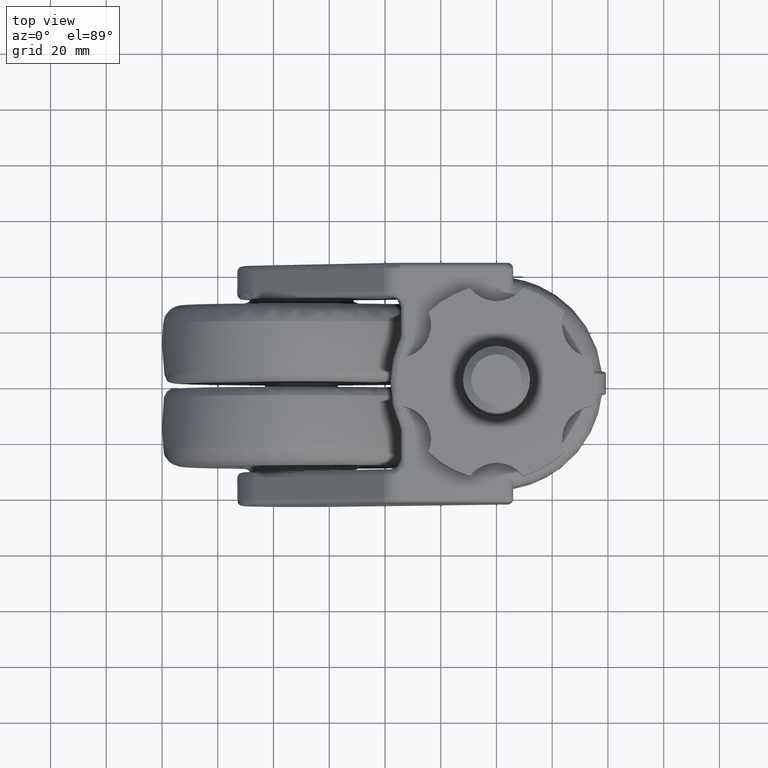
[diagram: clean part render]
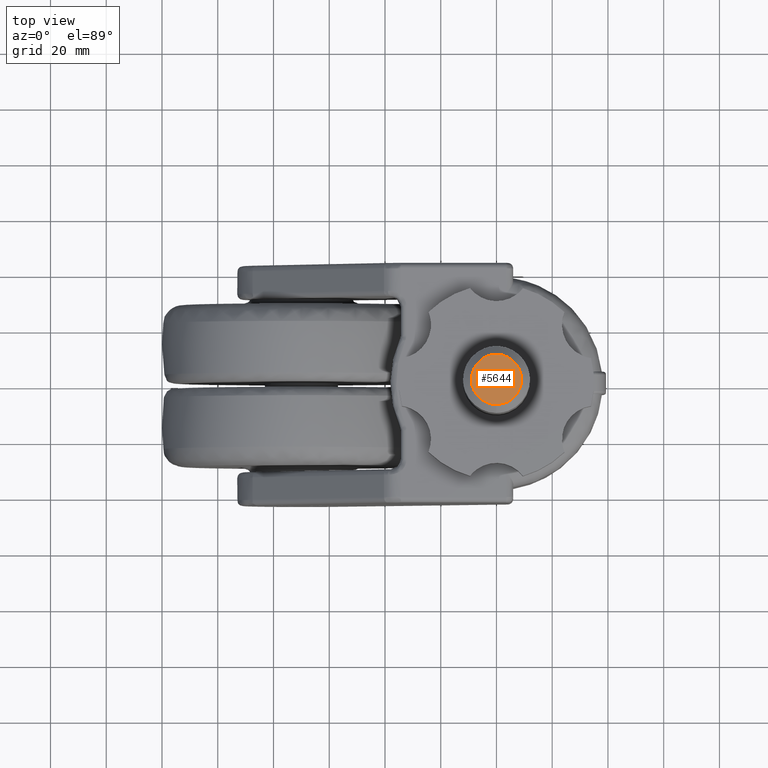
[diagram: same view with one face highlighted and labeled with its STEP entity id]
A machine part, top view. The second image highlights one B-rep face of the part: STEP entity #5644.
In plain terms, the highlighted face is a freeform B-spline surface patch.
Its self-contained STEP definition (entity closure, byte-faithful):
#3848=CARTESIAN_POINT('',(0.593121327534053,8.980434682739752,57.999999999992731));
#3849=VERTEX_POINT('',#3848);
#3855=CARTESIAN_POINT('',(9.0,0.0,58.0));
#3856=VERTEX_POINT('',#3855);
#3857=CARTESIAN_POINT('',(9.0,0.0,58.0));
#3858=CARTESIAN_POINT('',(9.0,8.425194405924694,58.000000000000014));
#3859=CARTESIAN_POINT('',(0.593121327534053,8.980434682739752,57.999999999992731));
#3867=(BOUNDED_CURVE()B_SPLINE_CURVE(2,(#3857,#3858,#3859),.UNSPECIFIED.,.F.,.U.)B_SPLINE_CURVE_WITH_KNOTS((3,3),(0.0,0.238494527071105),.UNSPECIFIED.)CURVE()GEOMETRIC_REPRESENTATION_ITEM()RATIONAL_B_SPLINE_CURVE((1.0,0.720586281187008,0.974281704177882))REPRESENTATION_ITEM(''));
#3868=EDGE_CURVE('',#3856,#3849,#3867,.T.);
#3870=CARTESIAN_POINT('',(-0.078538820924780,-8.999657307760927,57.999999999804061));
#3871=VERTEX_POINT('',#3870);
#3872=CARTESIAN_POINT('',(-0.078538820924780,-8.999657307760927,57.999999999804061));
#3873=CARTESIAN_POINT('',(-0.039270158824101,-8.999999999999998,58.0));
#3874=CARTESIAN_POINT('',(0.0,-9.0,58.0));
#3875=CARTESIAN_POINT('',(9.0,-9.0,57.999999999999993));
#3876=CARTESIAN_POINT('',(9.0,0.0,58.0));
#3884=(BOUNDED_CURVE()B_SPLINE_CURVE(2,(#3872,#3873,#3874,#3875,#3876),.UNSPECIFIED.,.F.,.U.)B_SPLINE_CURVE_WITH_KNOTS((3,2,3),(0.748460105608735,0.750000000000000,1.0),.UNSPECIFIED.)CURVE()GEOMETRIC_REPRESENTATION_ITEM()RATIONAL_B_SPLINE_CURVE((0.996414027970163,0.998195901500438,1.0,0.707106781186547,1.0))REPRESENTATION_ITEM(''));
#3885=EDGE_CURVE('',#3871,#3856,#3884,.T.);
#3995=CARTESIAN_POINT('',(-9.0,0.0,58.0));
#3996=VERTEX_POINT('',#3995);
#3997=CARTESIAN_POINT('',(-9.0,0.0,58.0));
#3998=CARTESIAN_POINT('',(-9.0,-8.921800892504132,58.0));
#3999=CARTESIAN_POINT('',(-0.078538820924780,-8.999657307760927,57.999999999804061));
#4007=(BOUNDED_CURVE()B_SPLINE_CURVE(2,(#3997,#3998,#3999),.UNSPECIFIED.,.F.,.U.)B_SPLINE_CURVE_WITH_KNOTS((3,3),(0.500000000000000,0.748460105608734),.UNSPECIFIED.)CURVE()GEOMETRIC_REPRESENTATION_ITEM()RATIONAL_B_SPLINE_CURVE((1.0,0.708910879686110,0.996414027970161))REPRESENTATION_ITEM(''));
#4008=EDGE_CURVE('',#3996,#3871,#4007,.T.);
#4010=CARTESIAN_POINT('',(0.593121327534053,8.980434682739752,57.999999999992731));
#4011=CARTESIAN_POINT('',(0.296883364751377,9.0,57.999999999999993));
#4012=CARTESIAN_POINT('',(0.0,9.0,58.0));
#4013=CARTESIAN_POINT('',(-9.0,9.0,57.999999999999993));
#4014=CARTESIAN_POINT('',(-9.0,0.0,58.0));
#4022=(BOUNDED_CURVE()B_SPLINE_CURVE(2,(#4010,#4011,#4012,#4013,#4014),.UNSPECIFIED.,.F.,.U.)B_SPLINE_CURVE_WITH_KNOTS((3,2,3),(0.238494527071105,0.250000000000000,0.500000000000000),.UNSPECIFIED.)CURVE()GEOMETRIC_REPRESENTATION_ITEM()RATIONAL_B_SPLINE_CURVE((0.974281704177882,0.986520499999540,1.0,0.707106781186547,1.0))REPRESENTATION_ITEM(''));
#4023=EDGE_CURVE('',#3849,#3996,#4022,.T.);
#5633=CARTESIAN_POINT('',(-9.899099965112507,-9.898711367413116,58.0));
#5634=CARTESIAN_POINT('',(9.899100447910129,-9.898711367413116,58.0));
#5635=CARTESIAN_POINT('',(-9.899099965112507,9.898469646736695,58.0));
#5636=CARTESIAN_POINT('',(9.899100447910129,9.898469646736695,58.0));
#5637=B_SPLINE_SURFACE_WITH_KNOTS('',1,1,((#5633,#5635),(#5634,#5636)),.UNSPECIFIED.,.F.,.F.,.U.,(2,2),(2,2),(0.0,19.798200413022631),(0.0,19.797181014149810),.UNSPECIFIED.);
#5638=ORIENTED_EDGE('',*,*,#3868,.T.);
#5639=ORIENTED_EDGE('',*,*,#4023,.T.);
#5640=ORIENTED_EDGE('',*,*,#4008,.T.);
#5641=ORIENTED_EDGE('',*,*,#3885,.T.);
#5642=EDGE_LOOP('',(#5638,#5639,#5640,#5641));
#5643=FACE_OUTER_BOUND('',#5642,.T.);
#5644=ADVANCED_FACE('',(#5643),#5637,.T.);